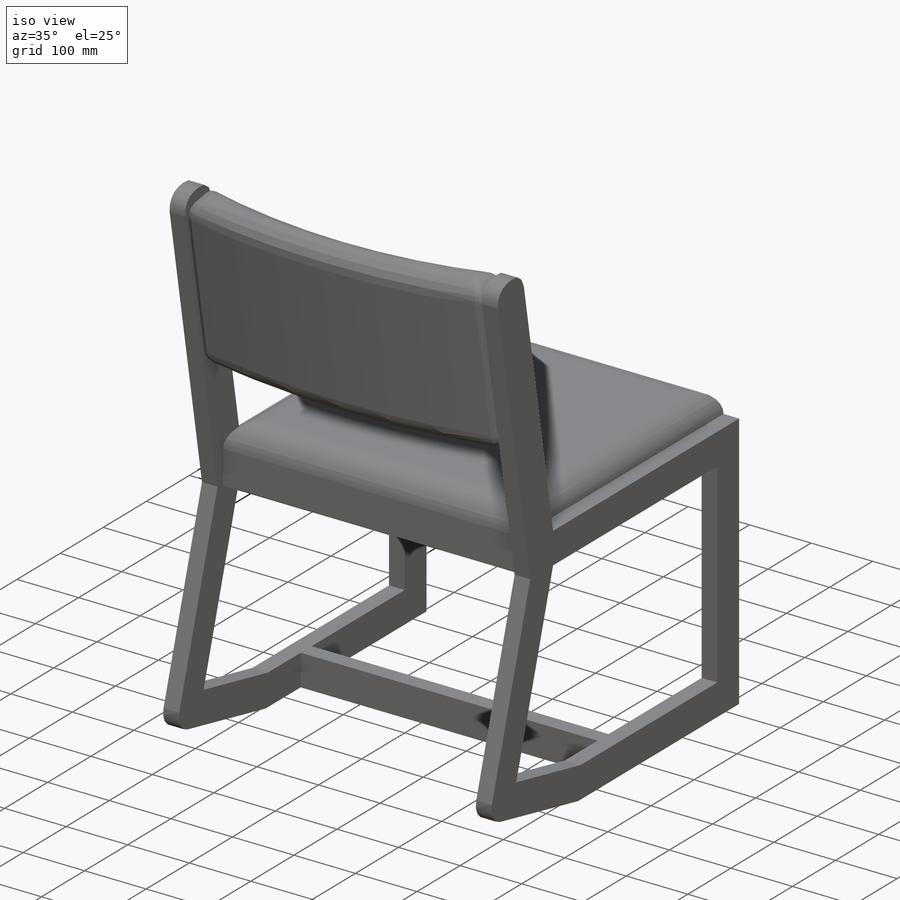
[diagram: iso view]
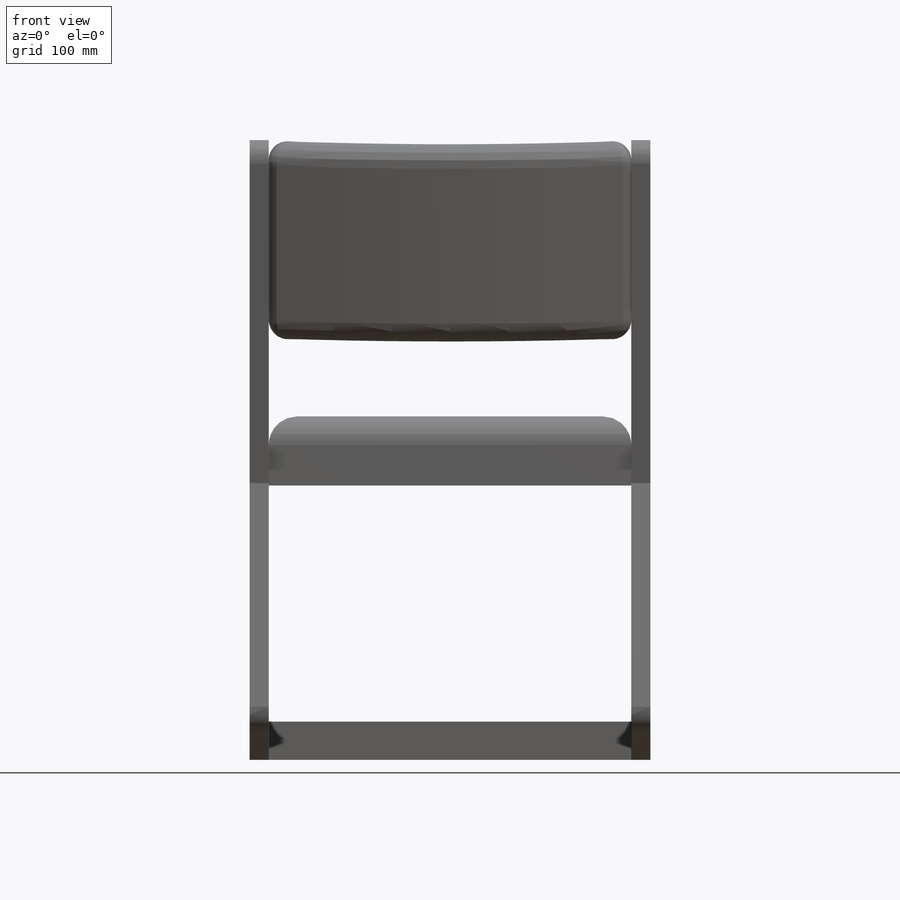
[diagram: front view]
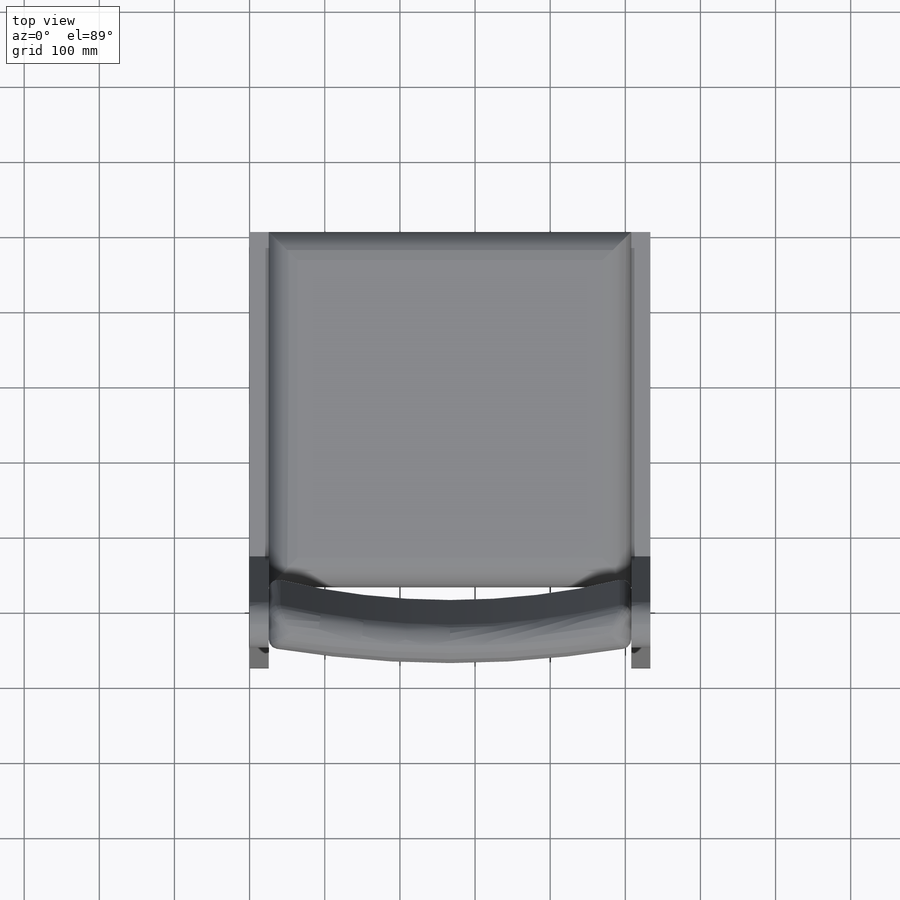
[diagram: top view]
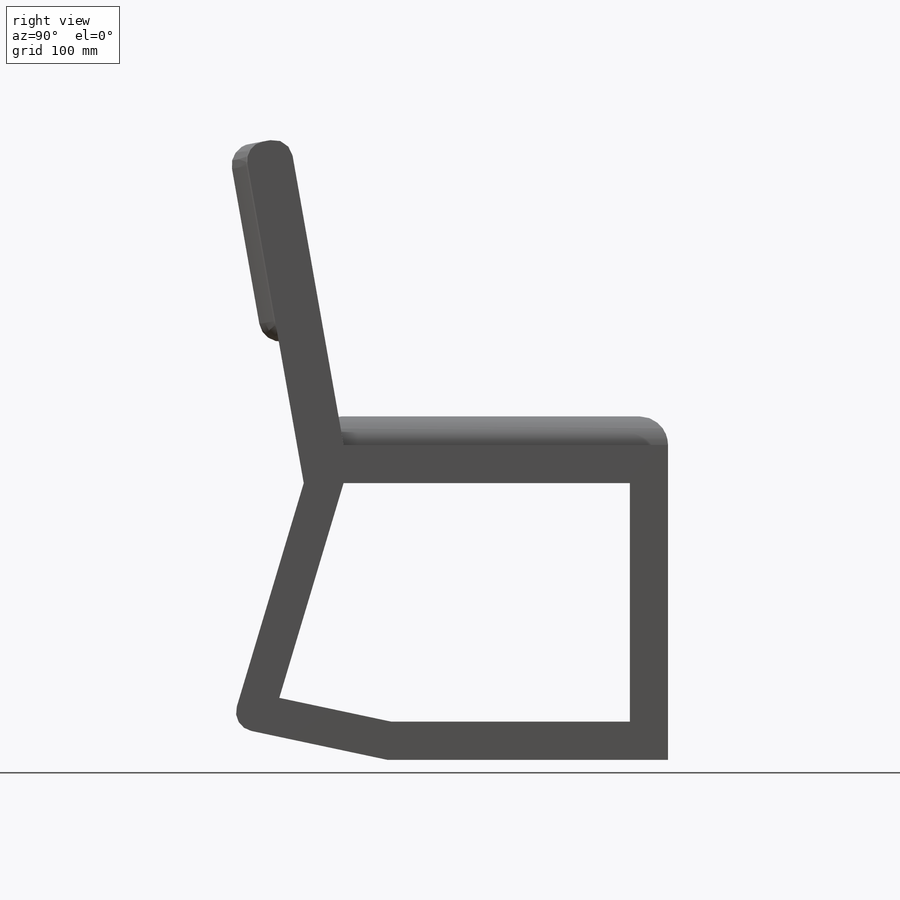
[diagram: right view]
SOLIDWORKS PART (.sldprt)
format: sldprt  version: not decoded by parser v0  size: 476,160 bytes
history: native  units: mm
features: sketch x5, extrude x5, fillet x4, material x1, plane x1 (+14 scaffold rows collapsed)
feature tree (30):
  scaffold x14  (default folders/planes/origin — collapsed)
  material  "Material <not specified>"
  sketch  "Sketch1"  dims[c1.D12=25.4mm c1.D1=431.8mm c1.D2=419.1mm c1.D3=50.8mm c1.D4=317.5mm c1.D5=~155.177108mm c2.D5=12.0deg c2.D6=152.4mm c2.D7=~244.166806mm c3.D7=18.0deg c3.D8=~50.765133mm c4.D7=~295.001431mm c5.D7=18.0deg c6.D7=50.8mm c6.D8=50.8mm c6.D9=~285.814258mm c7.D9=~175.332869deg c8.D9=50.8mm c8.D10=~280.532105mm c9.D10=10.0deg c9.D11=457.2mm]
  extrude  "Extrude1"  Depth=25.4mm
  sketch  "Sketch2"  dims[D1=25.4mm D2=12.7mm D3=12.7mm D4=266.7mm]
  extrude  "Extrude2"  Depth=482.6mm
  sketch  "Sketch4"  dims[D1=0.0mm D2=0.0mm]
  extrude  "Extrude5"  Depth=25.4mm
  plane  "Plane1"  Offset=266.7mm
  sketch  "Sketch5"  dims[D1=1371.6mm D2=965.2mm]
  extrude  "Extrude6"  Depth=266.7mm
  fillet  "Fillet1"  Radius=28.575mm
  fillet  "Fillet2"  Radius=28.575mm
  sketch  "Sketch6"
  extrude  "Extrude9"  Depth=38.1mm
  fillet  "Fillet3"  Radius=38.1mm
  fillet  "Fillet5"  Radius=12.7mm
decode coverage: 13 of 14 modeling features carry decoded parameters
note: ~ marks probable driven/reference dimensions
note: suppression state not decoded; provenance and decode notes live in map.json
